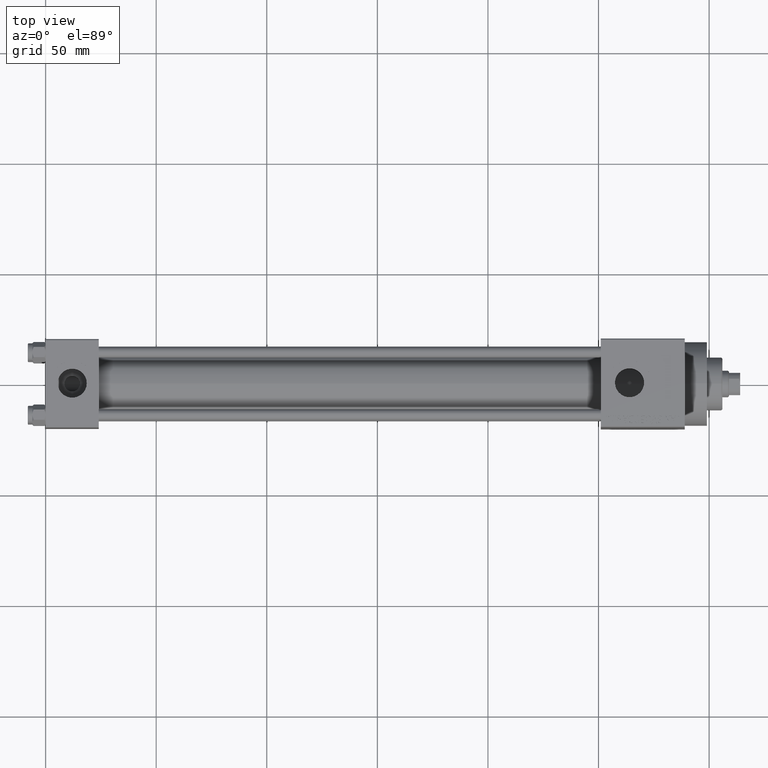
[diagram: clean part render]
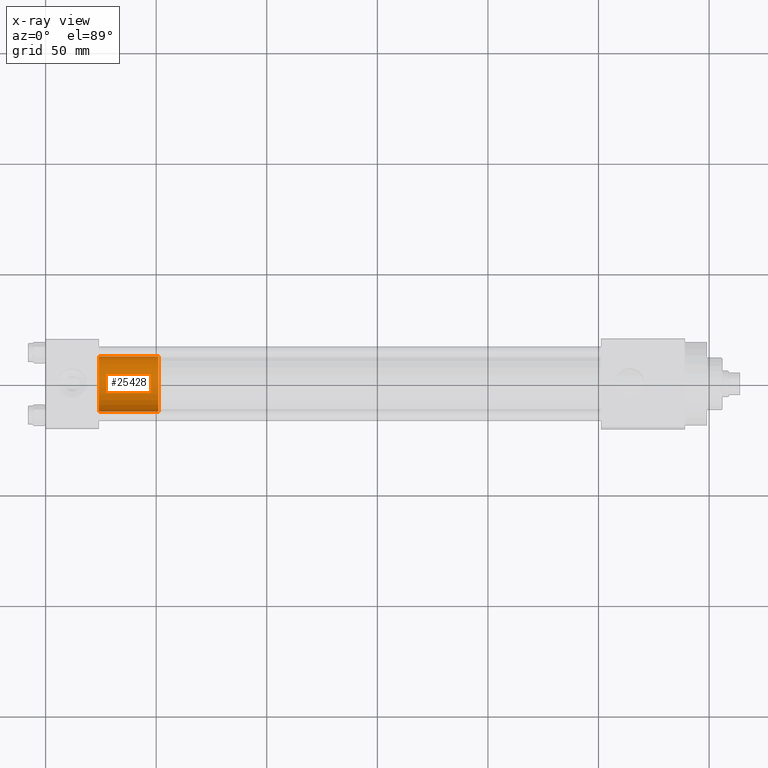
[diagram: x-ray — body ghosted, one internal face saturated and labeled with its STEP entity id]
A machine part, top view, then the same camera in x-ray: the body is ghosted and one INTERNAL B-rep face — a face not visible from any outside direction — is saturated and labeled: STEP entity #25428.
In plain terms, the highlighted cylindrical surface (edge-blend (fillet) strip) has radius 12.5 mm, axis along (-1, 0, 0).
Its self-contained STEP definition (entity closure, byte-faithful):
#577 = DIRECTION ( 'NONE',  ( -0.000000000000000000, -0.000000000000000000, -1.000000000000000000 ) ) ;
#1160 = LINE ( 'NONE', #15781, #11614 ) ;
#7925 = CARTESIAN_POINT ( 'NONE',  ( 12.50000000000000000, 1.530808498934191521E-15, 0.000000000000000000 ) ) ;
#8246 = EDGE_LOOP ( 'NONE', ( #13102, #15411, #45038, #8952 ) ) ;
#8637 = CARTESIAN_POINT ( 'NONE',  ( 0.000000000000000000, 0.000000000000000000, 27.00000000000000000 ) ) ;
#8878 = DIRECTION ( 'NONE',  ( 0.000000000000000000, 0.000000000000000000, 1.000000000000000000 ) ) ;
#8952 = ORIENTED_EDGE ( 'NONE', *, *, #46146, .F. ) ;
#9867 = CIRCLE ( 'NONE', #27416, 12.50000000000000000 ) ;
#11614 = VECTOR ( 'NONE', #43611, 1000.000000000000000 ) ;
#12220 = DIRECTION ( 'NONE',  ( -0.000000000000000000, -0.000000000000000000, -1.000000000000000000 ) ) ;
#13102 = ORIENTED_EDGE ( 'NONE', *, *, #20690, .F. ) ;
#13710 = EDGE_CURVE ( 'NONE', #33882, #36387, #9867, .T. ) ;
#14696 = VECTOR ( 'NONE', #12220, 1000.000000000000000 ) ;
#15411 = ORIENTED_EDGE ( 'NONE', *, *, #24402, .T. ) ;
#15781 = CARTESIAN_POINT ( 'NONE',  ( 12.50000000000000000, 1.530808498934191521E-15, 27.00000000000000000 ) ) ;
#16201 = AXIS2_PLACEMENT_3D ( 'NONE', #8637, #8878, #30622 ) ;
#16951 = CIRCLE ( 'NONE', #16201, 12.50000000000000000 ) ;
#20690 = EDGE_CURVE ( 'NONE', #25313, #27878, #16951, .T. ) ;
#21431 = DIRECTION ( 'NONE',  ( 1.000000000000000000, 0.000000000000000000, 0.000000000000000000 ) ) ;
#21898 = DIRECTION ( 'NONE',  ( 0.000000000000000000, 0.000000000000000000, 1.000000000000000000 ) ) ;
#24402 = EDGE_CURVE ( 'NONE', #25313, #33882, #1160, .T. ) ;
#25313 = VERTEX_POINT ( 'NONE', #29042 ) ;
#25428 = ADVANCED_FACE ( 'NONE', ( #44101 ), #43864, .T. ) ;
#27416 = AXIS2_PLACEMENT_3D ( 'NONE', #28837, #21898, #21431 ) ;
#27878 = VERTEX_POINT ( 'NONE', #39361 ) ;
#28837 = CARTESIAN_POINT ( 'NONE',  ( 0.000000000000000000, 0.000000000000000000, 0.000000000000000000 ) ) ;
#29042 = CARTESIAN_POINT ( 'NONE',  ( 12.50000000000000000, 1.530808498934191521E-15, 27.00000000000000000 ) ) ;
#30622 = DIRECTION ( 'NONE',  ( 1.000000000000000000, 0.000000000000000000, 0.000000000000000000 ) ) ;
#32816 = CARTESIAN_POINT ( 'NONE',  ( -12.50000000000000000, 0.000000000000000000, 0.000000000000000000 ) ) ;
#33099 = DIRECTION ( 'NONE',  ( -1.000000000000000000, 0.000000000000000000, 0.000000000000000000 ) ) ;
#33882 = VERTEX_POINT ( 'NONE', #7925 ) ;
#34439 = CARTESIAN_POINT ( 'NONE',  ( -12.50000000000000000, 0.000000000000000000, 27.00000000000000000 ) ) ;
#36387 = VERTEX_POINT ( 'NONE', #32816 ) ;
#36438 = CARTESIAN_POINT ( 'NONE',  ( 0.000000000000000000, 0.000000000000000000, 27.00000000000000000 ) ) ;
#39361 = CARTESIAN_POINT ( 'NONE',  ( -12.50000000000000000, 0.000000000000000000, 27.00000000000000000 ) ) ;
#40664 = AXIS2_PLACEMENT_3D ( 'NONE', #36438, #577, #33099 ) ;
#41169 = LINE ( 'NONE', #34439, #14696 ) ;
#43611 = DIRECTION ( 'NONE',  ( -0.000000000000000000, -0.000000000000000000, -1.000000000000000000 ) ) ;
#43864 = CYLINDRICAL_SURFACE ( 'NONE', #40664, 12.50000000000000000 ) ;
#44101 = FACE_OUTER_BOUND ( 'NONE', #8246, .T. ) ;
#45038 = ORIENTED_EDGE ( 'NONE', *, *, #13710, .T. ) ;
#46146 = EDGE_CURVE ( 'NONE', #27878, #36387, #41169, .T. ) ;